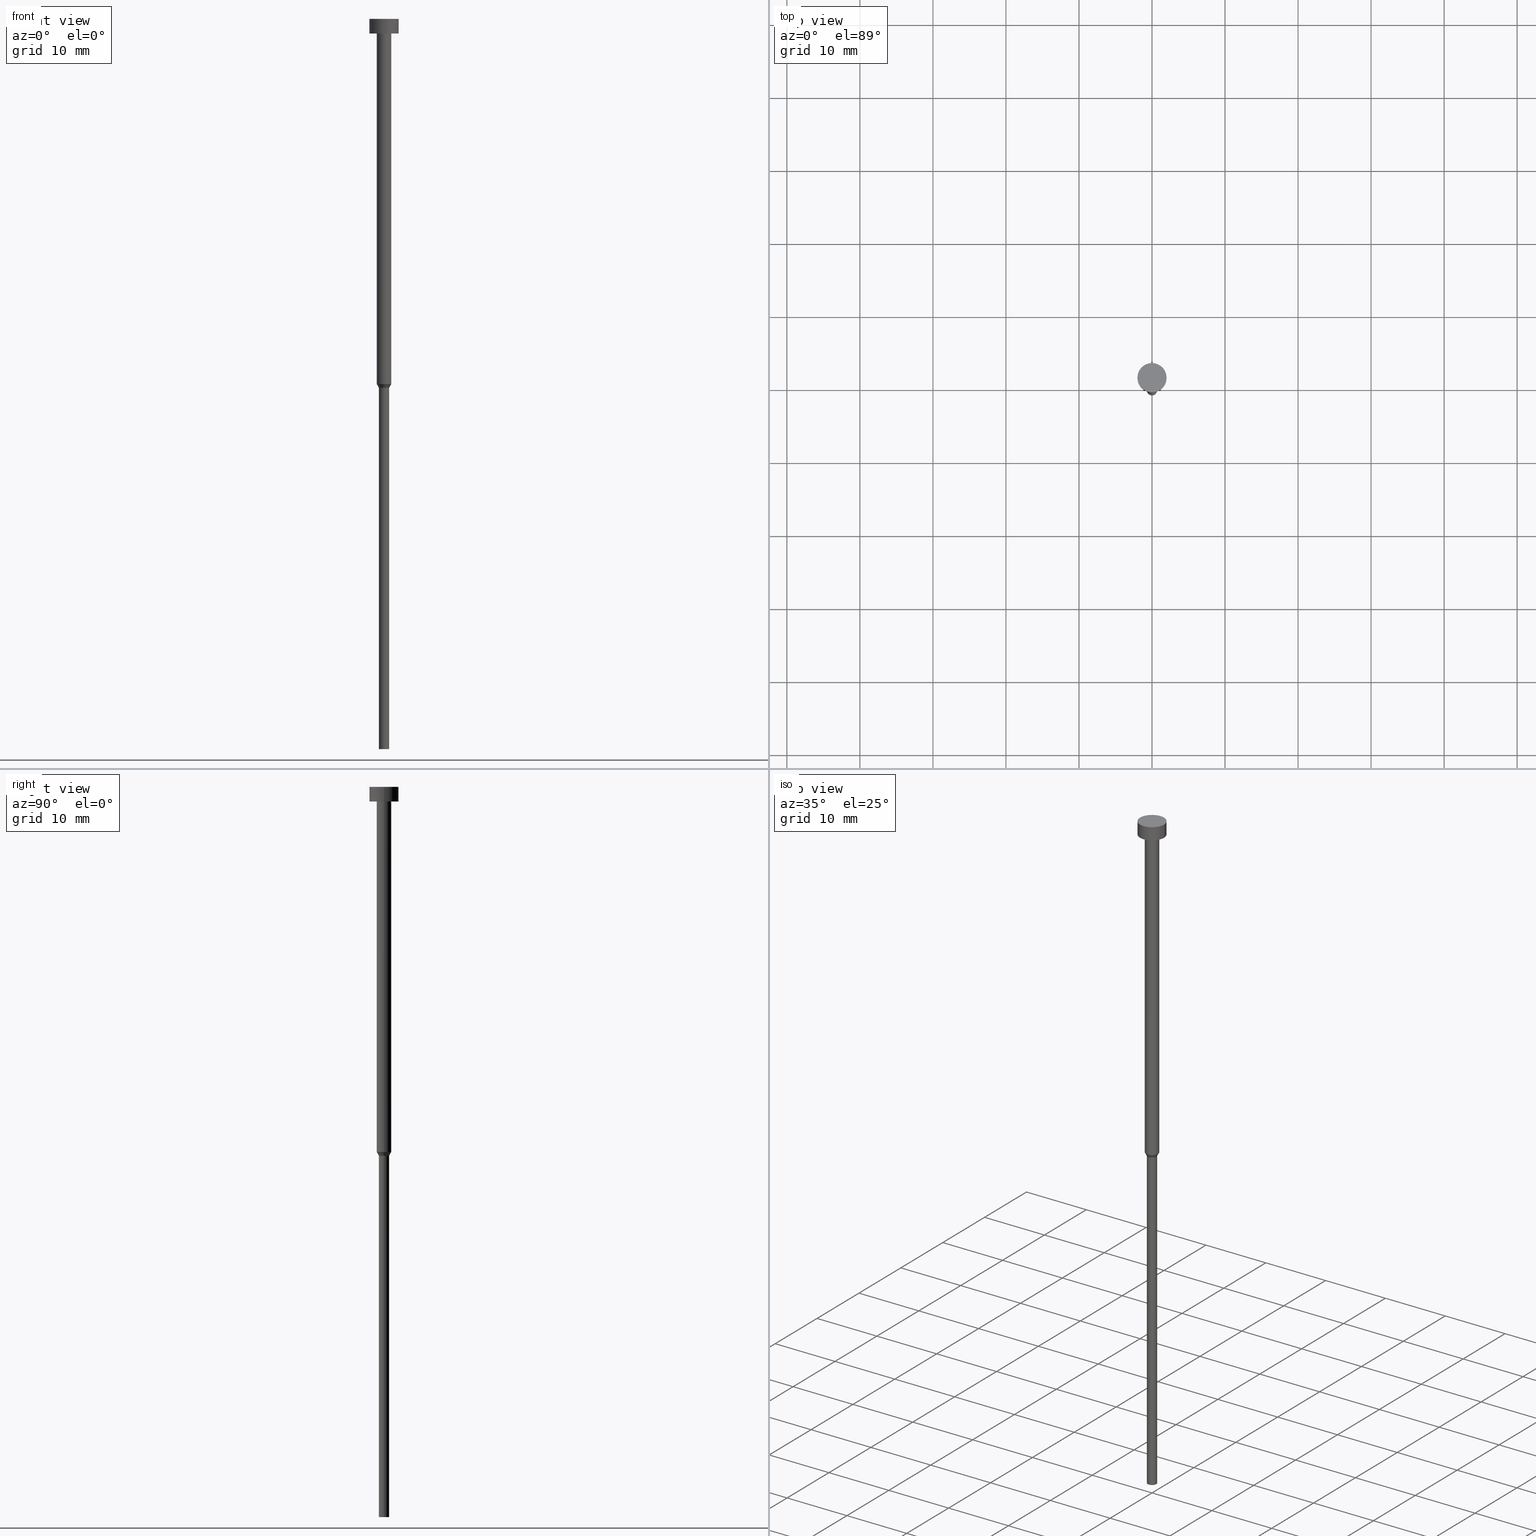
[diagram: canonical four-view strip — front | top / right | iso, engineering-drawing reading convention]
A machine part, canonical four-view strip (front | top / right | iso — engineering-drawing reading convention). The complete STEP part file that produces these views, byte-faithful:
ISO-10303-21;
HEADER;
FILE_DESCRIPTION (( 'STEP AP203' ),
    '1' );
FILE_NAME ('80c3.STEP',
    '2023-02-13T11:53:56',
    ( '' ),
    ( '' ),
    'SwSTEP 2.0',
    'SolidWorks 2019',
    '' );
FILE_SCHEMA (( 'CONFIG_CONTROL_DESIGN' ));
ENDSEC;

DATA;
#1 = LINE ( 'NONE', #105, #323 ) ;
#2 = ADVANCED_FACE ( 'NONE', ( #10, #146 ), #122, .T. ) ;
#3 = ORIENTED_EDGE ( 'NONE', *, *, #80, .T. ) ;
#4 = ORIENTED_EDGE ( 'NONE', *, *, #102, .F. ) ;
#5 = CYLINDRICAL_SURFACE ( 'NONE', #93, 1.000000000000003331 ) ;
#6 = ORIENTED_EDGE ( 'NONE', *, *, #34, .F. ) ;
#7 = ADVANCED_FACE ( 'NONE', ( #219 ), #61, .T. ) ;
#8 = CARTESIAN_POINT ( 'NONE',  ( 0.000000000000000000, -2.000000000000000000, -2.000000000000000444 ) ) ;
#9 = EDGE_CURVE ( 'NONE', #25, #83, #224, .T. ) ;
#10 = FACE_BOUND ( 'NONE', #162, .T. ) ;
#11 = CARTESIAN_POINT ( 'NONE',  ( -1.000000000000003109, 1.224646799147356905E-16, -50.00000000000000000 ) ) ;
#12 = DATE_TIME_ROLE ( 'creation_date' ) ;
#13 = APPROVAL ( #86, 'NEUR�EN�' ) ;
#14 = APPROVAL_PERSON_ORGANIZATION ( #309, #46, #95 ) ;
#15 = CARTESIAN_POINT ( 'NONE',  ( 0.000000000000000000, 0.000000000000000000, -100.0000000000000000 ) ) ;
#16 = AXIS2_PLACEMENT_3D ( 'NONE', #233, #153, #342 ) ;
#17 = CYLINDRICAL_SURFACE ( 'NONE', #316, 2.000000000000000000 ) ;
#18 = CARTESIAN_POINT ( 'NONE',  ( -2.000000000000000000, 2.449293598294706414E-16, -2.449293598294705921E-16 ) ) ;
#19 = CC_DESIGN_PERSON_AND_ORGANIZATION_ASSIGNMENT ( #39, #30, ( #268 ) ) ;
#20 = CARTESIAN_POINT ( 'NONE',  ( -0.6999999999999998446, 8.572527594031470725E-17, -100.0000000000000000 ) ) ;
#21 = PRODUCT_DEFINITION_SHAPE ( 'NONE', 'NONE',  #50 ) ;
#22 = PERSON_AND_ORGANIZATION ( #295, #135 ) ;
#23 = PLANE ( 'NONE',  #152 ) ;
#24 = CARTESIAN_POINT ( 'NONE',  ( 0.000000000000000000, 0.000000000000000000, 0.000000000000000000 ) ) ;
#25 = VERTEX_POINT ( 'NONE', #148 ) ;
#26 = CIRCLE ( 'NONE', #253, 2.000000000000000000 ) ;
#27 = LINE ( 'NONE', #103, #234 ) ;
#28 = AXIS2_PLACEMENT_3D ( 'NONE', #100, #346, #208 ) ;
#29 = CIRCLE ( 'NONE', #174, 0.6999999999999998446 ) ;
#30 = PERSON_AND_ORGANIZATION_ROLE ( 'design_owner' ) ;
#31 = VERTEX_POINT ( 'NONE', #255 ) ;
#32 = DIRECTION ( 'NONE',  ( -0.000000000000000000, -0.000000000000000000, 1.000000000000000000 ) ) ;
#33 = VERTEX_POINT ( 'NONE', #11 ) ;
#34 = EDGE_CURVE ( 'NONE', #190, #31, #123, .T. ) ;
#35 = AXIS2_PLACEMENT_3D ( 'NONE', #132, #238, #210 ) ;
#36 = ORIENTED_EDGE ( 'NONE', *, *, #92, .T. ) ;
#37 = AXIS2_PLACEMENT_3D ( 'NONE', #251, #335, #246 ) ;
#38 = ORIENTED_EDGE ( 'NONE', *, *, #34, .T. ) ;
#39 = PERSON_AND_ORGANIZATION ( #295, #135 ) ;
#40 = CC_DESIGN_PERSON_AND_ORGANIZATION_ASSIGNMENT ( #43, #44, ( #184 ) ) ;
#41 = DIRECTION ( 'NONE',  ( -0.000000000000000000, -0.000000000000000000, 1.000000000000000000 ) ) ;
#42 = CONICAL_SURFACE ( 'NONE', #28, 1.000000000000003109, 0.5235987755982977054 ) ;
#43 = PERSON_AND_ORGANIZATION ( #295, #135 ) ;
#44 = PERSON_AND_ORGANIZATION_ROLE ( 'creator' ) ;
#45 = DIRECTION ( 'NONE',  ( 1.000000000000000000, 0.000000000000000000, 0.000000000000000000 ) ) ;
#46 = APPROVAL ( #125, 'NEUR�EN�' ) ;
#47 = MANIFOLD_SOLID_BREP ( 'Rotovat1', #292 ) ;
#48 = DIRECTION ( 'NONE',  ( 0.000000000000000000, -0.000000000000000000, 1.000000000000000000 ) ) ;
#49 = DIRECTION ( 'NONE',  ( 1.000000000000000000, 0.000000000000000000, 0.000000000000000000 ) ) ;
#50 = PRODUCT_DEFINITION ( 'NEZN�M�', '', #184, #270 ) ;
#51 = DIRECTION ( 'NONE',  ( 1.000000000000000000, 0.000000000000000000, 0.000000000000000000 ) ) ;
#52 = DIRECTION ( 'NONE',  ( 0.000000000000000000, 0.000000000000000000, -1.000000000000000000 ) ) ;
#53 = CARTESIAN_POINT ( 'NONE',  ( 2.000000000000000000, 0.000000000000000000, 0.000000000000000000 ) ) ;
#54 = FACE_OUTER_BOUND ( 'NONE', #199, .T. ) ;
#55 = CC_DESIGN_PERSON_AND_ORGANIZATION_ASSIGNMENT ( #154, #160, ( #184 ) ) ;
#56 = CARTESIAN_POINT ( 'NONE',  ( 2.000000000000000000, 0.000000000000000000, -2.449293598294705921E-16 ) ) ;
#57 = ORIENTED_EDGE ( 'NONE', *, *, #9, .F. ) ;
#58 = VECTOR ( 'NONE', #318, 1000.000000000000000 ) ;
#59 = CARTESIAN_POINT ( 'NONE',  ( 0.000000000000000000, 0.000000000000000000, -50.00000000000000000 ) ) ;
#60 = AXIS2_PLACEMENT_3D ( 'NONE', #288, #230, #263 ) ;
#61 = CONICAL_SURFACE ( 'NONE', #107, 1.000000000000003109, 0.5235987755982977054 ) ;
#62 = ADVANCED_FACE ( 'NONE', ( #259 ), #156, .T. ) ;
#63 = VERTEX_POINT ( 'NONE', #18 ) ;
#64 = ORIENTED_EDGE ( 'NONE', *, *, #227, .T. ) ;
#65 =( NAMED_UNIT ( * ) SI_UNIT ( $, .STERADIAN. ) SOLID_ANGLE_UNIT ( ) );
#66 = ORIENTED_EDGE ( 'NONE', *, *, #315, .F. ) ;
#67 = ORIENTED_EDGE ( 'NONE', *, *, #92, .F. ) ;
#68 = ADVANCED_BREP_SHAPE_REPRESENTATION ( '80c3', ( #47, #37 ), #347 ) ;
#69 = ADVANCED_FACE ( 'NONE', ( #290 ), #23, .T. ) ;
#70 = CALENDAR_DATE ( 2023, 13, 2 ) ;
#71 = DIRECTION ( 'NONE',  ( 1.000000000000000000, 0.000000000000000000, 0.000000000000000000 ) ) ;
#72 = DIRECTION ( 'NONE',  ( -0.000000000000000000, -0.000000000000000000, 1.000000000000000000 ) ) ;
#73 = DIRECTION ( 'NONE',  ( -0.000000000000000000, -0.000000000000000000, 1.000000000000000000 ) ) ;
#74 = SECURITY_CLASSIFICATION ( '', '', #240 ) ;
#75 = SHAPE_DEFINITION_REPRESENTATION ( #21, #68 ) ;
#76 = DIRECTION ( 'NONE',  ( 1.000000000000000000, 0.000000000000000000, 0.000000000000000000 ) ) ;
#77 = LINE ( 'NONE', #258, #261 ) ;
#78 = AXIS2_PLACEMENT_3D ( 'NONE', #24, #244, #302 ) ;
#79 = APPROVAL_PERSON_ORGANIZATION ( #22, #320, #104 ) ;
#80 = EDGE_CURVE ( 'NONE', #25, #197, #128, .T. ) ;
#81 = EDGE_LOOP ( 'NONE', ( #4, #245, #3, #225 ) ) ;
#82 = COORDINATED_UNIVERSAL_TIME_OFFSET ( 1, 0, .AHEAD. ) ;
#83 = VERTEX_POINT ( 'NONE', #155 ) ;
#84 = CARTESIAN_POINT ( 'NONE',  ( -1.000000000000003553, 1.224646799147357398E-16, -2.000000000000000444 ) ) ;
#85 = ORIENTED_EDGE ( 'NONE', *, *, #151, .F. ) ;
#86 = APPROVAL_STATUS ( 'not_yet_approved' ) ;
#87 = CYLINDRICAL_SURFACE ( 'NONE', #35, 2.000000000000000000 ) ;
#88 = ORIENTED_EDGE ( 'NONE', *, *, #203, .T. ) ;
#89 = CIRCLE ( 'NONE', #16, 1.000000000000003109 ) ;
#90 = ORIENTED_EDGE ( 'NONE', *, *, #177, .T. ) ;
#91 = EDGE_CURVE ( 'NONE', #115, #190, #343, .T. ) ;
#92 = EDGE_CURVE ( 'NONE', #33, #31, #89, .T. ) ;
#93 = AXIS2_PLACEMENT_3D ( 'NONE', #189, #277, #303 ) ;
#94 = CALENDAR_DATE ( 2023, 13, 2 ) ;
#95 = APPROVAL_ROLE ( '' ) ;
#96 = DIRECTION ( 'NONE',  ( -0.000000000000000000, -0.000000000000000000, 1.000000000000000000 ) ) ;
#97 = ADVANCED_FACE ( 'NONE', ( #286 ), #204, .T. ) ;
#98 = DIRECTION ( 'NONE',  ( 1.000000000000000000, 0.000000000000000000, 0.000000000000000000 ) ) ;
#99 = CIRCLE ( 'NONE', #179, 2.000000000000000000 ) ;
#100 = CARTESIAN_POINT ( 'NONE',  ( 0.000000000000000000, 0.000000000000000000, -50.00000000000000000 ) ) ;
#101 = DIRECTION ( 'NONE',  ( -0.000000000000000000, -0.000000000000000000, 1.000000000000000000 ) ) ;
#102 = EDGE_CURVE ( 'NONE', #83, #63, #77, .T. ) ;
#103 = CARTESIAN_POINT ( 'NONE',  ( -1.000000000000003331, 1.224646799147357151E-16, 0.000000000000000000 ) ) ;
#104 = APPROVAL_ROLE ( '' ) ;
#105 = CARTESIAN_POINT ( 'NONE',  ( -0.6999999999999998446, 8.572527594031470725E-17, 0.000000000000000000 ) ) ;
#106 = ORIENTED_EDGE ( 'NONE', *, *, #173, .T. ) ;
#107 = AXIS2_PLACEMENT_3D ( 'NONE', #338, #176, #45 ) ;
#108 = LINE ( 'NONE', #215, #124 ) ;
#109 = EDGE_LOOP ( 'NONE', ( #354, #283, #38, #67 ) ) ;
#110 = ADVANCED_FACE ( 'NONE', ( #186 ), #256, .T. ) ;
#111 = PERSON_AND_ORGANIZATION ( #295, #135 ) ;
#112 = UNCERTAINTY_MEASURE_WITH_UNIT (LENGTH_MEASURE( 1.000000000000000082E-05 ), #305, 'distance_accuracy_value', 'NONE');
#113 = ORIENTED_EDGE ( 'NONE', *, *, #144, .F. ) ;
#114 = AXIS2_PLACEMENT_3D ( 'NONE', #325, #297, #164 ) ;
#115 = VERTEX_POINT ( 'NONE', #348 ) ;
#116 = AXIS2_PLACEMENT_3D ( 'NONE', #313, #187, #130 ) ;
#117 = EDGE_LOOP ( 'NONE', ( #272, #298, #191, #267 ) ) ;
#118 = ADVANCED_FACE ( 'NONE', ( #231 ), #42, .T. ) ;
#119 = DIRECTION ( 'NONE',  ( -1.000000000000000000, 0.000000000000000000, -0.000000000000000000 ) ) ;
#120 = CIRCLE ( 'NONE', #167, 1.000000000000003553 ) ;
#121 = EDGE_CURVE ( 'NONE', #137, #134, #142, .T. ) ;
#122 = PLANE ( 'NONE',  #355 ) ;
#123 = LINE ( 'NONE', #198, #218 ) ;
#124 = VECTOR ( 'NONE', #213, 1000.000000000000000 ) ;
#125 = APPROVAL_STATUS ( 'not_yet_approved' ) ;
#126 = DIRECTION ( 'NONE',  ( -1.000000000000000000, 0.000000000000000000, -0.000000000000000000 ) ) ;
#127 = CARTESIAN_POINT ( 'NONE',  ( 0.000000000000000000, 0.000000000000000000, 0.000000000000000000 ) ) ;
#128 = LINE ( 'NONE', #53, #145 ) ;
#129 = CC_DESIGN_APPROVAL ( #320, ( #74 ) ) ;
#130 = DIRECTION ( 'NONE',  ( 1.000000000000000000, 0.000000000000000000, 0.000000000000000000 ) ) ;
#131 = COORDINATED_UNIVERSAL_TIME_OFFSET ( 1, 0, .AHEAD. ) ;
#132 = CARTESIAN_POINT ( 'NONE',  ( 0.000000000000000000, 0.000000000000000000, 0.000000000000000000 ) ) ;
#133 = DIRECTION ( 'NONE',  ( -0.000000000000000000, -0.000000000000000000, 1.000000000000000000 ) ) ;
#134 = VERTEX_POINT ( 'NONE', #183 ) ;
#135 = ORGANIZATION ( 'NEUR�EN�', 'NEUR�EN�', '' ) ;
#136 = FACE_OUTER_BOUND ( 'NONE', #143, .T. ) ;
#137 = VERTEX_POINT ( 'NONE', #20 ) ;
#138 = APPLICATION_PROTOCOL_DEFINITION ( 'international standard', 'config_control_design', 1994, #274 ) ;
#139 = DIRECTION ( 'NONE',  ( -0.000000000000000000, -0.000000000000000000, 1.000000000000000000 ) ) ;
#140 = ORIENTED_EDGE ( 'NONE', *, *, #333, .T. ) ;
#141 = ORIENTED_EDGE ( 'NONE', *, *, #264, .T. ) ;
#142 = CIRCLE ( 'NONE', #250, 0.6999999999999998446 ) ;
#143 = EDGE_LOOP ( 'NONE', ( #248, #36, #141, #172 ) ) ;
#144 = EDGE_CURVE ( 'NONE', #83, #25, #26, .T. ) ;
#145 = VECTOR ( 'NONE', #159, 1000.000000000000000 ) ;
#146 = FACE_OUTER_BOUND ( 'NONE', #171, .T. ) ;
#147 = PERSON_AND_ORGANIZATION_ROLE ( 'creator' ) ;
#148 = CARTESIAN_POINT ( 'NONE',  ( 2.000000000000000000, 0.000000000000000000, -2.000000000000000444 ) ) ;
#149 = DIRECTION ( 'NONE',  ( -0.000000000000000000, -0.000000000000000000, 1.000000000000000000 ) ) ;
#150 = CIRCLE ( 'NONE', #114, 2.000000000000000000 ) ;
#151 = EDGE_CURVE ( 'NONE', #190, #115, #220, .T. ) ;
#152 = AXIS2_PLACEMENT_3D ( 'NONE', #351, #48, #51 ) ;
#153 = DIRECTION ( 'NONE',  ( -0.000000000000000000, -0.000000000000000000, 1.000000000000000000 ) ) ;
#154 = PERSON_AND_ORGANIZATION ( #295, #135 ) ;
#155 = CARTESIAN_POINT ( 'NONE',  ( -2.000000000000000000, 2.449293598294706414E-16, -2.000000000000000444 ) ) ;
#156 = CYLINDRICAL_SURFACE ( 'NONE', #60, 0.6999999999999998446 ) ;
#157 = ADVANCED_FACE ( 'NONE', ( #287 ), #17, .T. ) ;
#158 = DATE_TIME_ROLE ( 'classification_date' ) ;
#159 = DIRECTION ( 'NONE',  ( -0.000000000000000000, -0.000000000000000000, 1.000000000000000000 ) ) ;
#160 = PERSON_AND_ORGANIZATION_ROLE ( 'design_supplier' ) ;
#161 = CYLINDRICAL_SURFACE ( 'NONE', #78, 1.000000000000003331 ) ;
#162 = EDGE_LOOP ( 'NONE', ( #106, #88 ) ) ;
#163 = APPROVAL_DATE_TIME ( #296, #320 ) ;
#164 = DIRECTION ( 'NONE',  ( 1.000000000000000000, 0.000000000000000000, 0.000000000000000000 ) ) ;
#165 = EDGE_LOOP ( 'NONE', ( #330, #196 ) ) ;
#166 =( NAMED_UNIT ( * ) PLANE_ANGLE_UNIT ( ) SI_UNIT ( $, .RADIAN. ) );
#167 = AXIS2_PLACEMENT_3D ( 'NONE', #236, #101, #209 ) ;
#168 = CARTESIAN_POINT ( 'NONE',  ( -1.000000000000003109, 1.224646799147356905E-16, -50.00000000000000000 ) ) ;
#169 = ORIENTED_EDGE ( 'NONE', *, *, #315, .T. ) ;
#170 = AXIS2_PLACEMENT_3D ( 'NONE', #334, #41, #71 ) ;
#171 = EDGE_LOOP ( 'NONE', ( #57, #113 ) ) ;
#172 = ORIENTED_EDGE ( 'NONE', *, *, #203, .F. ) ;
#173 = EDGE_CURVE ( 'NONE', #326, #294, #120, .T. ) ;
#174 = AXIS2_PLACEMENT_3D ( 'NONE', #269, #307, #281 ) ;
#175 = DIRECTION ( 'NONE',  ( 0.4999999999999990008, 0.000000000000000000, 0.8660254037844392627 ) ) ;
#176 = DIRECTION ( 'NONE',  ( -0.000000000000000000, -0.000000000000000000, 1.000000000000000000 ) ) ;
#177 = EDGE_CURVE ( 'NONE', #134, #190, #321, .T. ) ;
#178 = ORIENTED_EDGE ( 'NONE', *, *, #349, .T. ) ;
#179 = AXIS2_PLACEMENT_3D ( 'NONE', #322, #275, #331 ) ;
#180 = DATE_AND_TIME ( #70, #308 ) ;
#181 = DATE_AND_TIME ( #94, #243 ) ;
#182 = CC_DESIGN_DATE_AND_TIME_ASSIGNMENT ( #181, #12, ( #50 ) ) ;
#183 = CARTESIAN_POINT ( 'NONE',  ( 0.6999999999999998446, 0.000000000000000000, -100.0000000000000000 ) ) ;
#184 = PRODUCT_DEFINITION_FORMATION_WITH_SPECIFIED_SOURCE ( 'LIBOVOLN�', '', #268, .NOT_KNOWN. ) ;
#185 = CARTESIAN_POINT ( 'NONE',  ( 0.000000000000000000, 0.000000000000000000, -100.0000000000000000 ) ) ;
#186 = FACE_OUTER_BOUND ( 'NONE', #165, .T. ) ;
#187 = DIRECTION ( 'NONE',  ( -0.000000000000000000, -0.000000000000000000, 1.000000000000000000 ) ) ;
#188 = VECTOR ( 'NONE', #328, 1000.000000000000000 ) ;
#189 = CARTESIAN_POINT ( 'NONE',  ( 0.000000000000000000, 0.000000000000000000, 0.000000000000000000 ) ) ;
#190 = VERTEX_POINT ( 'NONE', #332 ) ;
#191 = ORIENTED_EDGE ( 'NONE', *, *, #227, .F. ) ;
#192 = APPLICATION_PROTOCOL_DEFINITION ( 'international standard', 'config_control_design', 1994, #329 ) ;
#193 = LINE ( 'NONE', #168, #188 ) ;
#194 = CIRCLE ( 'NONE', #341, 1.000000000000003553 ) ;
#195 = CC_DESIGN_APPROVAL ( #13, ( #50 ) ) ;
#196 = ORIENTED_EDGE ( 'NONE', *, *, #121, .F. ) ;
#197 = VERTEX_POINT ( 'NONE', #56 ) ;
#198 = CARTESIAN_POINT ( 'NONE',  ( 1.000000000000003109, 0.000000000000000000, -50.00000000000000000 ) ) ;
#199 = EDGE_LOOP ( 'NONE', ( #169, #214, #212, #254 ) ) ;
#200 = APPROVAL_DATE_TIME ( #339, #13 ) ;
#201 = COORDINATED_UNIVERSAL_TIME_OFFSET ( 1, 0, .AHEAD. ) ;
#202 = EDGE_LOOP ( 'NONE', ( #178, #304, #85, #249 ) ) ;
#203 = EDGE_CURVE ( 'NONE', #294, #326, #194, .T. ) ;
#204 = CYLINDRICAL_SURFACE ( 'NONE', #116, 0.6999999999999998446 ) ;
#205 = DIRECTION ( 'NONE',  ( 1.000000000000000000, 0.000000000000000000, 0.000000000000000000 ) ) ;
#206 = DIRECTION ( 'NONE',  ( -0.000000000000000000, -0.000000000000000000, 1.000000000000000000 ) ) ;
#207 = CC_DESIGN_SECURITY_CLASSIFICATION ( #74, ( #184 ) ) ;
#208 = DIRECTION ( 'NONE',  ( 1.000000000000000000, 0.000000000000000000, 0.000000000000000000 ) ) ;
#209 = DIRECTION ( 'NONE',  ( 1.000000000000000000, 0.000000000000000000, 0.000000000000000000 ) ) ;
#210 = DIRECTION ( 'NONE',  ( 1.000000000000000000, 0.000000000000000000, 0.000000000000000000 ) ) ;
#211 = LOCAL_TIME ( 12, 53, 56.00000000000000000, #82 ) ;
#212 = ORIENTED_EDGE ( 'NONE', *, *, #173, .F. ) ;
#213 = DIRECTION ( 'NONE',  ( -0.000000000000000000, -0.000000000000000000, 1.000000000000000000 ) ) ;
#214 = ORIENTED_EDGE ( 'NONE', *, *, #216, .T. ) ;
#215 = CARTESIAN_POINT ( 'NONE',  ( 1.000000000000003331, 0.000000000000000000, 0.000000000000000000 ) ) ;
#216 = EDGE_CURVE ( 'NONE', #33, #294, #27, .T. ) ;
#217 = ORIENTED_EDGE ( 'NONE', *, *, #91, .F. ) ;
#218 = VECTOR ( 'NONE', #175, 1000.000000000000000 ) ;
#219 = FACE_OUTER_BOUND ( 'NONE', #278, .T. ) ;
#220 = CIRCLE ( 'NONE', #271, 0.6999999999999999556 ) ;
#221 = LOCAL_TIME ( 12, 53, 56.00000000000000000, #131 ) ;
#222 = CC_DESIGN_APPROVAL ( #46, ( #184 ) ) ;
#223 = COORDINATED_UNIVERSAL_TIME_OFFSET ( 1, 0, .AHEAD. ) ;
#224 = CIRCLE ( 'NONE', #170, 2.000000000000000000 ) ;
#225 = ORIENTED_EDGE ( 'NONE', *, *, #337, .F. ) ;
#226 = CALENDAR_DATE ( 2023, 13, 2 ) ;
#227 = EDGE_CURVE ( 'NONE', #197, #63, #99, .T. ) ;
#228 = CIRCLE ( 'NONE', #279, 1.000000000000003109 ) ;
#229 = APPROVAL_PERSON_ORGANIZATION ( #111, #13, #273 ) ;
#230 = DIRECTION ( 'NONE',  ( -0.000000000000000000, -0.000000000000000000, 1.000000000000000000 ) ) ;
#231 = FACE_OUTER_BOUND ( 'NONE', #109, .T. ) ;
#232 = CARTESIAN_POINT ( 'NONE',  ( 0.6999999999999998446, 0.000000000000000000, 0.000000000000000000 ) ) ;
#233 = CARTESIAN_POINT ( 'NONE',  ( 0.000000000000000000, 0.000000000000000000, -50.00000000000000000 ) ) ;
#234 = VECTOR ( 'NONE', #293, 1000.000000000000000 ) ;
#235 = AXIS2_PLACEMENT_3D ( 'NONE', #319, #149, #76 ) ;
#236 = CARTESIAN_POINT ( 'NONE',  ( 0.000000000000000000, 0.000000000000000000, -2.000000000000000444 ) ) ;
#237 = CALENDAR_DATE ( 2023, 13, 2 ) ;
#238 = DIRECTION ( 'NONE',  ( -0.000000000000000000, -0.000000000000000000, 1.000000000000000000 ) ) ;
#239 = CC_DESIGN_PERSON_AND_ORGANIZATION_ASSIGNMENT ( #310, #147, ( #50 ) ) ;
#240 = SECURITY_CLASSIFICATION_LEVEL ( 'unclassified' ) ;
#241 = DIRECTION ( 'NONE',  ( 1.000000000000000000, 0.000000000000000000, 0.000000000000000000 ) ) ;
#242 = EDGE_LOOP ( 'NONE', ( #301, #336, #90, #217 ) ) ;
#243 = LOCAL_TIME ( 12, 53, 56.00000000000000000, #340 ) ;
#244 = DIRECTION ( 'NONE',  ( -0.000000000000000000, -0.000000000000000000, 1.000000000000000000 ) ) ;
#245 = ORIENTED_EDGE ( 'NONE', *, *, #144, .T. ) ;
#246 = DIRECTION ( 'NONE',  ( 1.000000000000000000, 0.000000000000000000, 0.000000000000000000 ) ) ;
#247 = DIRECTION ( 'NONE',  ( 1.000000000000000000, 0.000000000000000000, 0.000000000000000000 ) ) ;
#248 = ORIENTED_EDGE ( 'NONE', *, *, #216, .F. ) ;
#249 = ORIENTED_EDGE ( 'NONE', *, *, #177, .F. ) ;
#250 = AXIS2_PLACEMENT_3D ( 'NONE', #185, #289, #260 ) ;
#251 = CARTESIAN_POINT ( 'NONE',  ( 0.000000000000000000, 0.000000000000000000, 0.000000000000000000 ) ) ;
#252 = ORIENTED_EDGE ( 'NONE', *, *, #151, .T. ) ;
#253 = AXIS2_PLACEMENT_3D ( 'NONE', #345, #96, #205 ) ;
#254 = ORIENTED_EDGE ( 'NONE', *, *, #264, .F. ) ;
#255 = CARTESIAN_POINT ( 'NONE',  ( 1.000000000000003109, 0.000000000000000000, -50.00000000000000000 ) ) ;
#256 = PLANE ( 'NONE',  #312 ) ;
#257 = CC_DESIGN_PERSON_AND_ORGANIZATION_ASSIGNMENT ( #262, #324, ( #74 ) ) ;
#258 = CARTESIAN_POINT ( 'NONE',  ( -2.000000000000000000, 2.449293598294706414E-16, 0.000000000000000000 ) ) ;
#259 = FACE_OUTER_BOUND ( 'NONE', #242, .T. ) ;
#260 = DIRECTION ( 'NONE',  ( 1.000000000000000000, 0.000000000000000000, 0.000000000000000000 ) ) ;
#261 = VECTOR ( 'NONE', #72, 1000.000000000000000 ) ;
#262 = PERSON_AND_ORGANIZATION ( #295, #135 ) ;
#263 = DIRECTION ( 'NONE',  ( 1.000000000000000000, 0.000000000000000000, 0.000000000000000000 ) ) ;
#264 = EDGE_CURVE ( 'NONE', #31, #326, #108, .T. ) ;
#265 = CALENDAR_DATE ( 2023, 13, 2 ) ;
#266 = FACE_OUTER_BOUND ( 'NONE', #81, .T. ) ;
#267 = ORIENTED_EDGE ( 'NONE', *, *, #80, .F. ) ;
#268 = PRODUCT ( '80c3', '80c3', '', ( #299 ) ) ;
#269 = CARTESIAN_POINT ( 'NONE',  ( 0.000000000000000000, 0.000000000000000000, -100.0000000000000000 ) ) ;
#270 = DESIGN_CONTEXT ( 'detailed design', #274, 'design' ) ;
#271 = AXIS2_PLACEMENT_3D ( 'NONE', #314, #73, #49 ) ;
#272 = ORIENTED_EDGE ( 'NONE', *, *, #9, .T. ) ;
#273 = APPROVAL_ROLE ( '' ) ;
#274 = APPLICATION_CONTEXT ( 'configuration controlled 3d designs of mechanical parts and assemblies' ) ;
#275 = DIRECTION ( 'NONE',  ( -0.000000000000000000, -0.000000000000000000, 1.000000000000000000 ) ) ;
#276 = EDGE_LOOP ( 'NONE', ( #64, #282 ) ) ;
#277 = DIRECTION ( 'NONE',  ( -0.000000000000000000, -0.000000000000000000, 1.000000000000000000 ) ) ;
#278 = EDGE_LOOP ( 'NONE', ( #252, #140, #66, #6 ) ) ;
#279 = AXIS2_PLACEMENT_3D ( 'NONE', #59, #133, #241 ) ;
#280 = LOCAL_TIME ( 12, 53, 56.00000000000000000, #223 ) ;
#281 = DIRECTION ( 'NONE',  ( 1.000000000000000000, 0.000000000000000000, 0.000000000000000000 ) ) ;
#282 = ORIENTED_EDGE ( 'NONE', *, *, #337, .T. ) ;
#283 = ORIENTED_EDGE ( 'NONE', *, *, #91, .T. ) ;
#284 = CC_DESIGN_DATE_AND_TIME_ASSIGNMENT ( #350, #158, ( #74 ) ) ;
#285 = APPROVAL_DATE_TIME ( #180, #46 ) ;
#286 = FACE_OUTER_BOUND ( 'NONE', #202, .T. ) ;
#287 = FACE_OUTER_BOUND ( 'NONE', #117, .T. ) ;
#288 = CARTESIAN_POINT ( 'NONE',  ( 0.000000000000000000, 0.000000000000000000, 0.000000000000000000 ) ) ;
#289 = DIRECTION ( 'NONE',  ( -0.000000000000000000, -0.000000000000000000, 1.000000000000000000 ) ) ;
#290 = FACE_OUTER_BOUND ( 'NONE', #276, .T. ) ;
#291 = ADVANCED_FACE ( 'NONE', ( #136 ), #5, .T. ) ;
#292 = CLOSED_SHELL ( 'NONE', ( #157, #306, #7, #97, #110, #62, #118, #291, #2, #300, #69 ) ) ;
#293 = DIRECTION ( 'NONE',  ( -0.000000000000000000, -0.000000000000000000, 1.000000000000000000 ) ) ;
#294 = VERTEX_POINT ( 'NONE', #84 ) ;
#295 = PERSON ( 'NEUR�EN�', 'NEUR�EN�', 'NEUR�EN�', ('NEUR�EN�'), ('NEUR�EN�'), ('NEUR�EN�') ) ;
#296 = DATE_AND_TIME ( #237, #221 ) ;
#297 = DIRECTION ( 'NONE',  ( -0.000000000000000000, -0.000000000000000000, 1.000000000000000000 ) ) ;
#298 = ORIENTED_EDGE ( 'NONE', *, *, #102, .T. ) ;
#299 = MECHANICAL_CONTEXT ( 'NONE', #329, 'mechanical' ) ;
#300 = ADVANCED_FACE ( 'NONE', ( #266 ), #87, .T. ) ;
#301 = ORIENTED_EDGE ( 'NONE', *, *, #327, .F. ) ;
#302 = DIRECTION ( 'NONE',  ( 1.000000000000000000, 0.000000000000000000, 0.000000000000000000 ) ) ;
#303 = DIRECTION ( 'NONE',  ( 1.000000000000000000, 0.000000000000000000, 0.000000000000000000 ) ) ;
#304 = ORIENTED_EDGE ( 'NONE', *, *, #327, .T. ) ;
#305 =( LENGTH_UNIT ( ) NAMED_UNIT ( * ) SI_UNIT ( .MILLI., .METRE. ) );
#306 = ADVANCED_FACE ( 'NONE', ( #54 ), #161, .T. ) ;
#307 = DIRECTION ( 'NONE',  ( -0.000000000000000000, -0.000000000000000000, 1.000000000000000000 ) ) ;
#308 = LOCAL_TIME ( 12, 53, 56.00000000000000000, #201 ) ;
#309 = PERSON_AND_ORGANIZATION ( #295, #135 ) ;
#310 = PERSON_AND_ORGANIZATION ( #295, #135 ) ;
#311 = DIRECTION ( 'NONE',  ( 0.000000000000000000, 0.000000000000000000, -1.000000000000000000 ) ) ;
#312 = AXIS2_PLACEMENT_3D ( 'NONE', #15, #52, #126 ) ;
#313 = CARTESIAN_POINT ( 'NONE',  ( 0.000000000000000000, 0.000000000000000000, 0.000000000000000000 ) ) ;
#314 = CARTESIAN_POINT ( 'NONE',  ( 0.000000000000000000, 0.000000000000000000, -50.51961524227067457 ) ) ;
#315 = EDGE_CURVE ( 'NONE', #31, #33, #228, .T. ) ;
#316 = AXIS2_PLACEMENT_3D ( 'NONE', #127, #206, #98 ) ;
#317 = APPROVAL_STATUS ( 'not_yet_approved' ) ;
#318 = DIRECTION ( 'NONE',  ( -0.000000000000000000, -0.000000000000000000, 1.000000000000000000 ) ) ;
#319 = CARTESIAN_POINT ( 'NONE',  ( 0.000000000000000000, 0.000000000000000000, -50.51961524227067457 ) ) ;
#320 = APPROVAL ( #317, 'NEUR�EN�' ) ;
#321 = LINE ( 'NONE', #232, #58 ) ;
#322 = CARTESIAN_POINT ( 'NONE',  ( 0.000000000000000000, 0.000000000000000000, -2.449293598294705921E-16 ) ) ;
#323 = VECTOR ( 'NONE', #139, 1000.000000000000000 ) ;
#324 = PERSON_AND_ORGANIZATION_ROLE ( 'classification_officer' ) ;
#325 = CARTESIAN_POINT ( 'NONE',  ( 0.000000000000000000, 0.000000000000000000, -2.449293598294705921E-16 ) ) ;
#326 = VERTEX_POINT ( 'NONE', #353 ) ;
#327 = EDGE_CURVE ( 'NONE', #137, #115, #1, .T. ) ;
#328 = DIRECTION ( 'NONE',  ( -0.4999999999999990008, 6.123233995736753710E-17, 0.8660254037844392627 ) ) ;
#329 = APPLICATION_CONTEXT ( 'configuration controlled 3d designs of mechanical parts and assemblies' ) ;
#330 = ORIENTED_EDGE ( 'NONE', *, *, #349, .F. ) ;
#331 = DIRECTION ( 'NONE',  ( 1.000000000000000000, 0.000000000000000000, 0.000000000000000000 ) ) ;
#332 = CARTESIAN_POINT ( 'NONE',  ( 0.6999999999999999556, 0.000000000000000000, -50.51961524227067457 ) ) ;
#333 = EDGE_CURVE ( 'NONE', #115, #33, #193, .T. ) ;
#334 = CARTESIAN_POINT ( 'NONE',  ( 0.000000000000000000, 0.000000000000000000, -2.000000000000000444 ) ) ;
#335 = DIRECTION ( 'NONE',  ( 0.000000000000000000, 0.000000000000000000, 1.000000000000000000 ) ) ;
#336 = ORIENTED_EDGE ( 'NONE', *, *, #121, .T. ) ;
#337 = EDGE_CURVE ( 'NONE', #63, #197, #150, .T. ) ;
#338 = CARTESIAN_POINT ( 'NONE',  ( 0.000000000000000000, 0.000000000000000000, -50.00000000000000000 ) ) ;
#339 = DATE_AND_TIME ( #226, #280 ) ;
#340 = COORDINATED_UNIVERSAL_TIME_OFFSET ( 1, 0, .AHEAD. ) ;
#341 = AXIS2_PLACEMENT_3D ( 'NONE', #352, #32, #247 ) ;
#342 = DIRECTION ( 'NONE',  ( 1.000000000000000000, 0.000000000000000000, 0.000000000000000000 ) ) ;
#343 = CIRCLE ( 'NONE', #235, 0.6999999999999999556 ) ;
#344 = PRODUCT_RELATED_PRODUCT_CATEGORY ( 'detail', '', ( #268 ) ) ;
#345 = CARTESIAN_POINT ( 'NONE',  ( 0.000000000000000000, 0.000000000000000000, -2.000000000000000444 ) ) ;
#346 = DIRECTION ( 'NONE',  ( -0.000000000000000000, -0.000000000000000000, 1.000000000000000000 ) ) ;
#347 =( GEOMETRIC_REPRESENTATION_CONTEXT ( 3 ) GLOBAL_UNCERTAINTY_ASSIGNED_CONTEXT ( ( #112 ) ) GLOBAL_UNIT_ASSIGNED_CONTEXT ( ( #305, #166, #65 ) ) REPRESENTATION_CONTEXT ( 'NONE', 'WORKASPACE' ) );
#348 = CARTESIAN_POINT ( 'NONE',  ( -0.6999999999999999556, 8.572527594031473190E-17, -50.51961524227067457 ) ) ;
#349 = EDGE_CURVE ( 'NONE', #134, #137, #29, .T. ) ;
#350 = DATE_AND_TIME ( #265, #211 ) ;
#351 = CARTESIAN_POINT ( 'NONE',  ( 0.000000000000000000, 0.000000000000000000, -1.224646799147352961E-16 ) ) ;
#352 = CARTESIAN_POINT ( 'NONE',  ( 0.000000000000000000, 0.000000000000000000, -2.000000000000000444 ) ) ;
#353 = CARTESIAN_POINT ( 'NONE',  ( 1.000000000000003553, 0.000000000000000000, -2.000000000000000444 ) ) ;
#354 = ORIENTED_EDGE ( 'NONE', *, *, #333, .F. ) ;
#355 = AXIS2_PLACEMENT_3D ( 'NONE', #8, #311, #119 ) ;
ENDSEC;
END-ISO-10303-21;
